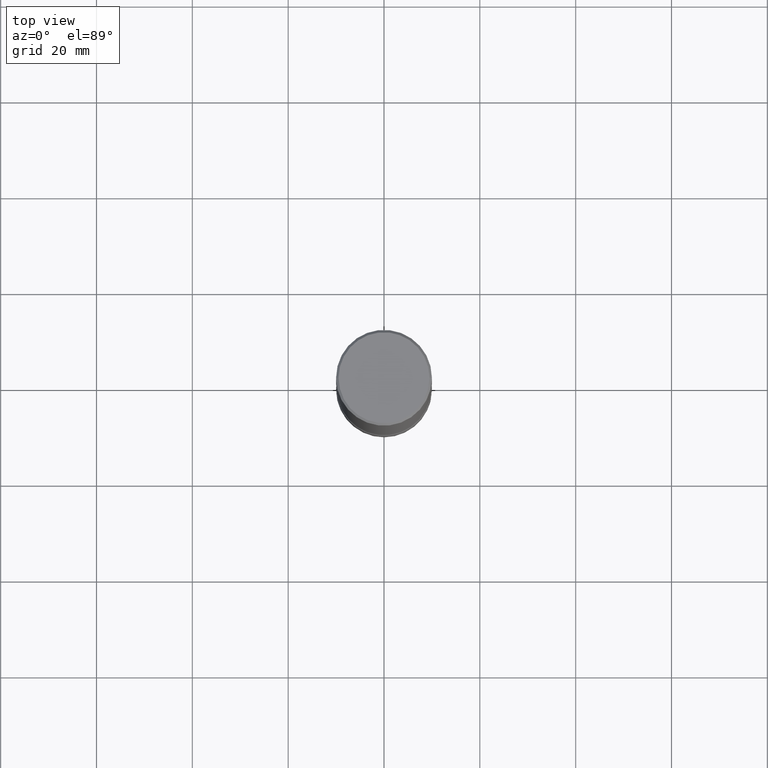
[diagram: clean part render]
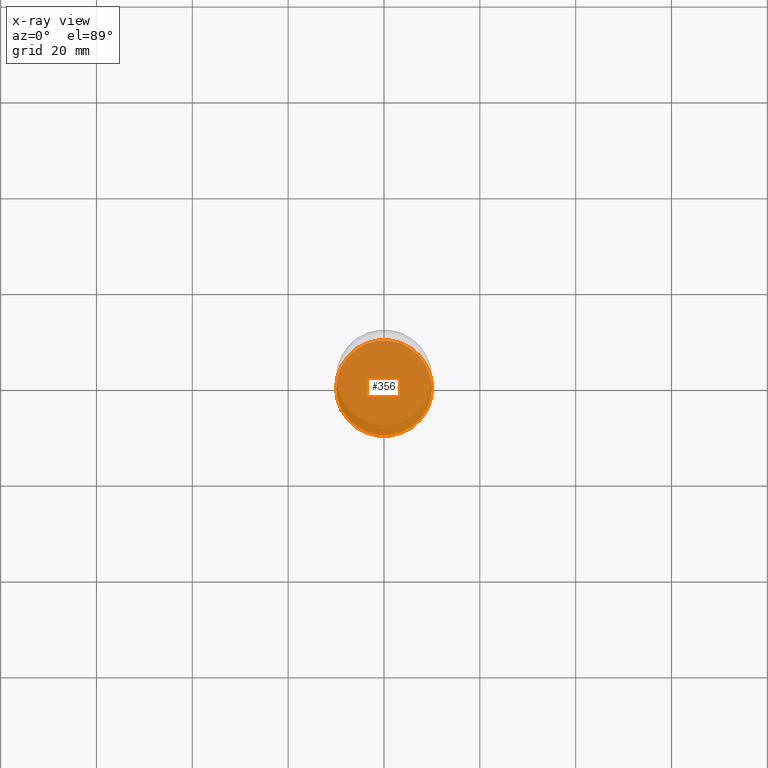
[diagram: x-ray — body ghosted, one internal face saturated and labeled with its STEP entity id]
A machine part, top view, then the same camera in x-ray: the body is ghosted and one INTERNAL B-rep face — a face not visible from any outside direction — is saturated and labeled: STEP entity #356.
In plain terms, the highlighted planar face has unit normal (0, -0, -1).
Its self-contained STEP definition (entity closure, byte-faithful):
#73 = AXIS2_PLACEMENT_3D ( 'NONE', #433, #93, #399 ) ;
#86 = DIRECTION ( 'NONE',  ( -1.000000000000000000, 6.982962677686265922E-15, 0.000000000000000000 ) ) ;
#87 = DIRECTION ( 'NONE',  ( 2.438088387897960049E-29, -3.491481338843145188E-15, -1.000000000000000000 ) ) ;
#93 = DIRECTION ( 'NONE',  ( 2.445468806185136597E-29, -3.491481338843145583E-15, -1.000000000000000000 ) ) ;
#97 = ORIENTED_EDGE ( 'NONE', *, *, #522, .T. ) ;
#137 = CARTESIAN_POINT ( 'NONE',  ( 1.203464108899829379E-28, -1.718227796471488830E-14, -4.921199999999999797 ) ) ;
#172 = AXIS2_PLACEMENT_3D ( 'NONE', #137, #524, #86 ) ;
#180 = VERTEX_POINT ( 'NONE', #242 ) ;
#219 = DIRECTION ( 'NONE',  ( -1.000000000000000000, 6.982962677686265922E-15, -4.876176775795935793E-29 ) ) ;
#242 = CARTESIAN_POINT ( 'NONE',  ( -0.3931999999999991058, -1.438647766170034457E-14, -4.921199999999999797 ) ) ;
#271 = FACE_OUTER_BOUND ( 'NONE', #560, .T. ) ;
#314 = CIRCLE ( 'NONE', #172, 0.3931999999999991058 ) ;
#322 = EDGE_CURVE ( 'NONE', #180, #436, #324, .T. ) ;
#324 = CIRCLE ( 'NONE', #73, 0.3931999999999991058 ) ;
#356 = ADVANCED_FACE ( 'NONE', ( #271 ), #445, .T. ) ;
#375 = AXIS2_PLACEMENT_3D ( 'NONE', #534, #87, #219 ) ;
#393 = CARTESIAN_POINT ( 'NONE',  ( 0.3931999999999991058, -1.992862014748325994E-14, -4.921199999999999797 ) ) ;
#399 = DIRECTION ( 'NONE',  ( -1.000000000000000000, 6.982962677686265922E-15, 0.000000000000000000 ) ) ;
#433 = CARTESIAN_POINT ( 'NONE',  ( 1.203464108899829379E-28, -1.718227796471488830E-14, -4.921199999999999797 ) ) ;
#436 = VERTEX_POINT ( 'NONE', #393 ) ;
#445 = PLANE ( 'NONE',  #375 ) ;
#507 = ORIENTED_EDGE ( 'NONE', *, *, #322, .T. ) ;
#522 = EDGE_CURVE ( 'NONE', #436, #180, #314, .T. ) ;
#524 = DIRECTION ( 'NONE',  ( 2.445468806185136597E-29, -3.491481338843145583E-15, -1.000000000000000000 ) ) ;
#534 = CARTESIAN_POINT ( 'NONE',  ( 2.745700924866353805E-15, 0.3931999999999818973, -4.921200000000001573 ) ) ;
#560 = EDGE_LOOP ( 'NONE', ( #97, #507 ) ) ;